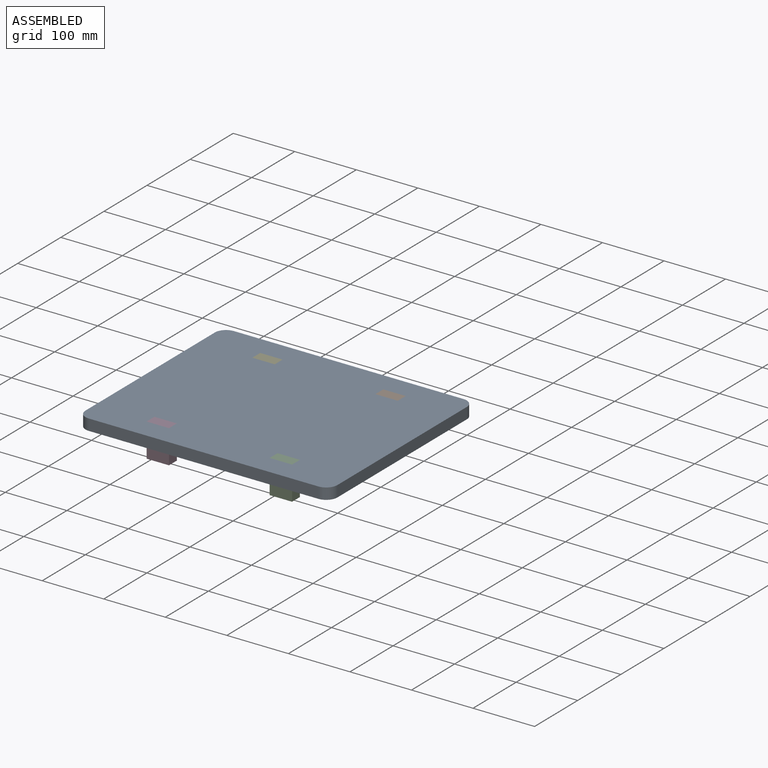
[diagram: assembled view]
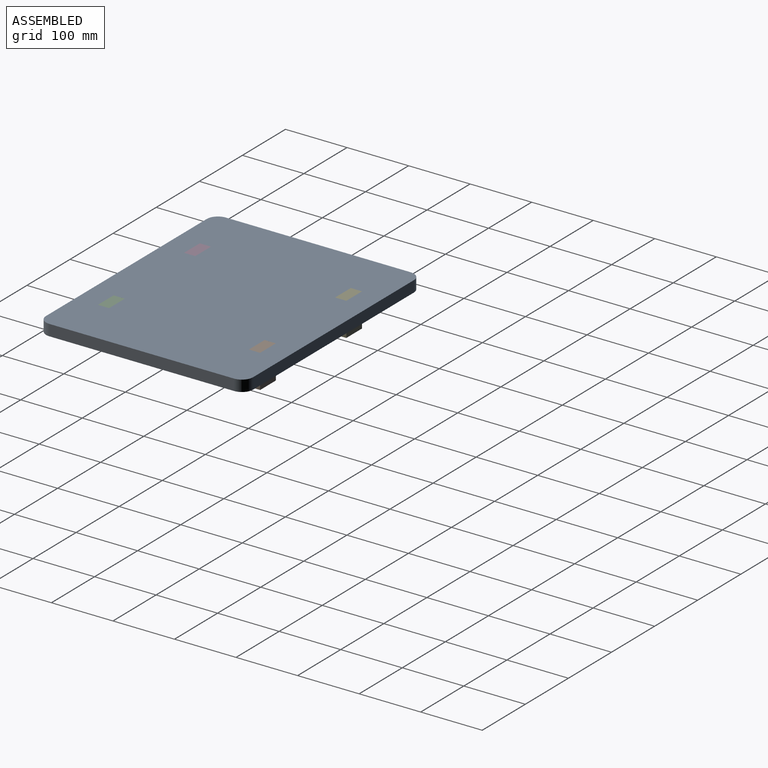
[diagram: assembled view, second angle]
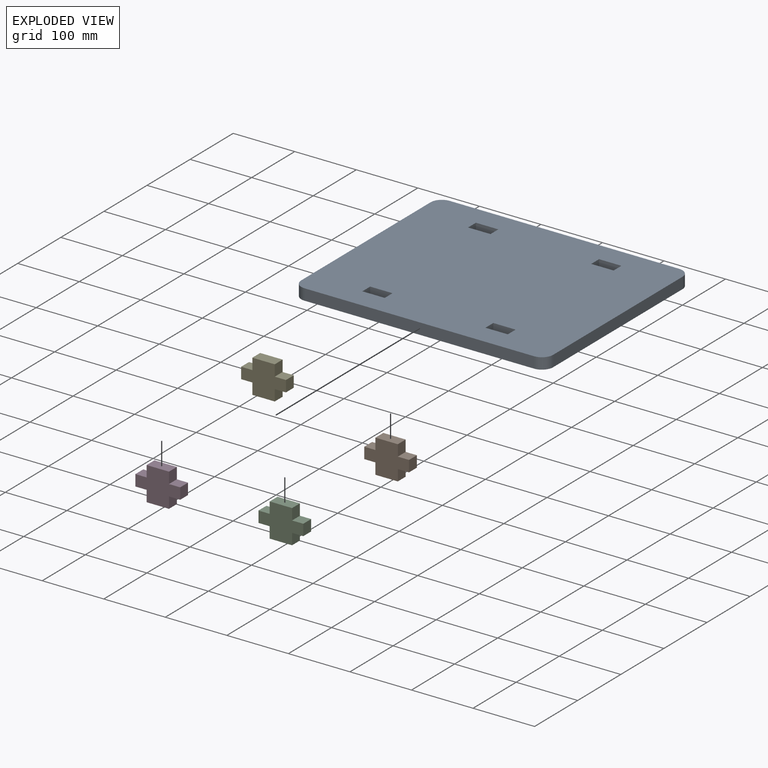
[diagram: exploded view]
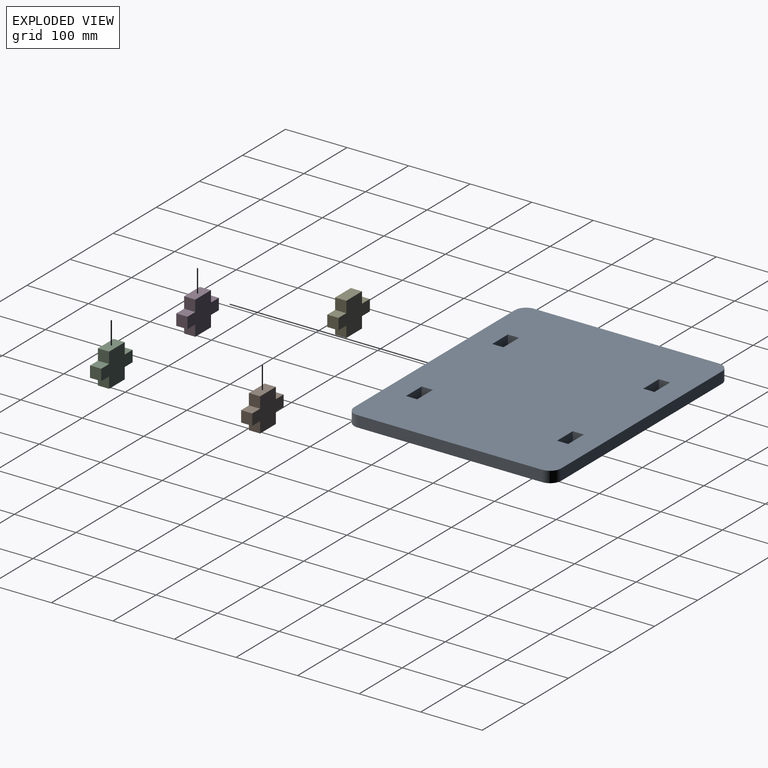
[diagram: exploded view, second angle]
ASSEMBLY  parts=5 mates=4
PART A: 26 faces, bbox 409.2x336.4x18.2 mm
  f0: plane 300x18.2mm, normal (-1,0,0), area 5460mm2, adj f1,f23,f24,f25
  f1: cylinder r=18.2mm len=18.2mm, axis (0,0,-1), area 520.3mm2, adj f0,f2,f24,f25
  f2: plane 372.8x18.2mm, normal (0,-1,0), area 6785mm2, adj f1,f3,f24,f25
  f3: cylinder r=18.2mm len=18.2mm, axis (0,0,-1), area 520.3mm2, adj f2,f4,f24,f25
  f4: plane 300x18.2mm, normal (1,0,0), area 5460mm2, adj f3,f5,f24,f25
  f5: cylinder r=18.2mm len=18.2mm, axis (0,0,-1), area 520.3mm2, adj f4,f6,f24,f25
  f6: plane 372.8x18.2mm, normal (0,1,0), area 6785mm2, adj f5,f23,f24,f25
  f7: plane 18.2x18.2mm, normal (1,0,0), area 331.2mm2, adj f8,f19,f24,f25
  f8: plane 36.4x18.2mm, normal (0,-1,0), area 662.5mm2, adj f7,f9,f24,f25
  f9: plane 18.2x18.2mm, normal (-1,0,0), area 331.2mm2, adj f8,f19,f24,f25
  f10: plane 18.2x18.2mm, normal (-1,0,0), area 331.2mm2, adj f11,f20,f24,f25
  f11: plane 36.4x18.2mm, normal (0,1,0), area 662.5mm2, adj f10,f12,f24,f25
  f12: plane 18.2x18.2mm, normal (1,0,0), area 331.2mm2, adj f11,f20,f24,f25
  f13: plane 18.2x18.2mm, normal (1,0,0), area 331.2mm2, adj f14,f21,f24,f25
  f14: plane 36.4x18.2mm, normal (0,-1,0), area 662.5mm2, adj f13,f15,f24,f25
  f15: plane 18.2x18.2mm, normal (-1,0,0), area 331.2mm2, adj f14,f21,f24,f25
  f16: plane 36.4x18.2mm, normal (0,-1,0), area 662.5mm2, adj f17,f22,f24,f25
  f17: plane 18.2x18.2mm, normal (-1,0,0), area 331.2mm2, adj f16,f18,f24,f25
  f18: plane 36.4x18.2mm, normal (0,1,0), area 662.5mm2, adj f17,f22,f24,f25
  f19: plane 36.4x18.2mm, normal (0,1,0), area 662.5mm2, adj f7,f9,f24,f25
  f20: plane 36.4x18.2mm, normal (0,-1,0), area 662.5mm2, adj f10,f12,f24,f25
  f21: plane 36.4x18.2mm, normal (0,1,0), area 662.5mm2, adj f13,f15,f24,f25
  f22: plane 18.2x18.2mm, normal (1,0,0), area 331.2mm2, adj f16,f18,f24,f25
  f23: cylinder r=18.2mm len=18.2mm, axis (0,0,-1), area 520.3mm2, adj f0,f6,f24,f25
  f24: plane 409.2x336.4mm, normal (0,0,1), area 134720.6mm2, adj f0,f1,f2,f3,f4,f5,f6,f7
  f25: plane 409.2x336.4mm, normal (0,0,-1), area 134720.6mm2, adj f0,f1,f2,f3,f4,f5,f6,f7
PART B: 14 faces, bbox 72.8x18.2x54.6 mm
  f0: plane 36.4x18.2mm, normal (0,0,-1), area 662.5mm2, adj f1,f11,f12,f13
  f1: plane 18.2x18.2mm, normal (1,0,0), area 331.2mm2, adj f0,f2,f12,f13
  f2: plane 18.2x18.2mm, normal (0,0,-1), area 331.2mm2, adj f1,f3,f12,f13
  f3: plane 18.2x18.2mm, normal (1,0,0), area 331.2mm2, adj f2,f4,f12,f13
  f4: plane 18.2x18.2mm, normal (0,0,1), area 331.2mm2, adj f3,f5,f12,f13
  f5: plane 18.2x18.2mm, normal (1,0,0), area 331.2mm2, adj f4,f6,f12,f13
  f6: plane 36.4x18.2mm, normal (0,0,1), area 662.5mm2, adj f5,f7,f12,f13
  f7: plane 18.2x18.2mm, normal (-1,0,0), area 331.2mm2, adj f6,f8,f12,f13
  f8: plane 18.2x18.2mm, normal (0,0,1), area 331.2mm2, adj f7,f9,f12,f13
  f9: plane 18.2x18.2mm, normal (-1,0,0), area 331.2mm2, adj f8,f10,f12,f13
  f10: plane 18.2x18.2mm, normal (0,0,-1), area 331.2mm2, adj f9,f11,f12,f13
  f11: plane 18.2x18.2mm, normal (-1,0,0), area 331.2mm2, adj f0,f10,f12,f13
  f12: plane 72.8x54.6mm, normal (0,-1,0), area 2649.9mm2, adj f0,f1,f2,f3,f4,f5,f6,f7
  f13: plane 72.8x54.6mm, normal (0,1,0), area 2649.9mm2, adj f0,f1,f2,f3,f4,f5,f6,f7
PART C: same geometry as B
PART D: same geometry as B
PART E: same geometry as B
PLACE A at identity fixed
PLACE B t=(100,131.8,-9.1)mm
PLACE C t=(100,-113.6,-9.1)mm
PLACE D t=(-100,-113.6,-9.1)mm
PLACE E t=(-100,131.8,-9.1)mm
MATE fastened B.f6 <-> A.f24  axis (0,0,1) through (100,122.7,18.2)mm
MATE fastened E.f6 <-> A.f24  axis (0,0,1) through (-100,122.7,18.2)mm
MATE fastened C.f6 <-> A.f24  axis (0,0,1) through (100,-122.7,18.2)mm
MATE fastened D.f6 <-> A.f24  axis (0,0,1) through (-100,-122.7,18.2)mm
